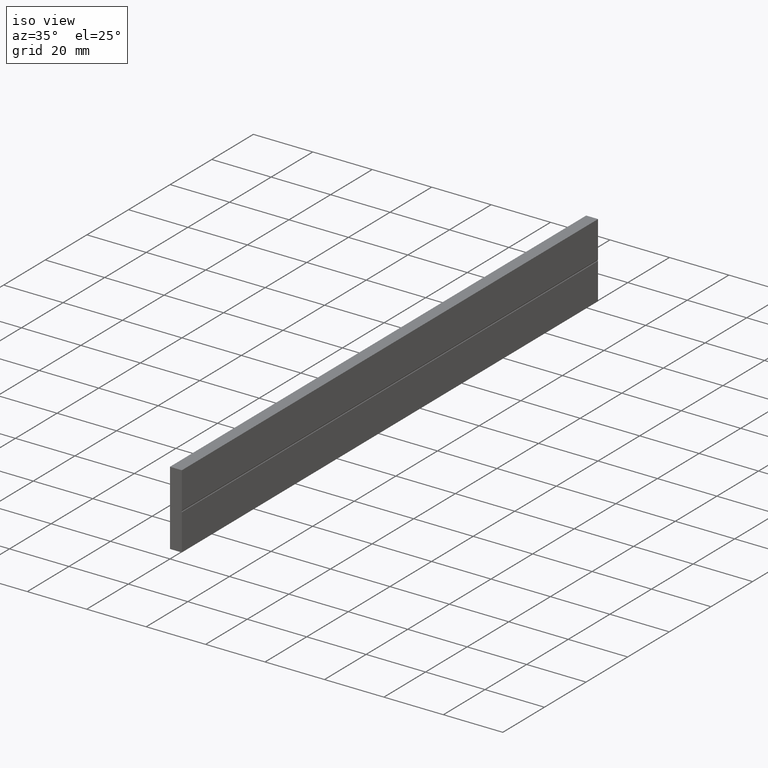
[diagram: clean part render]
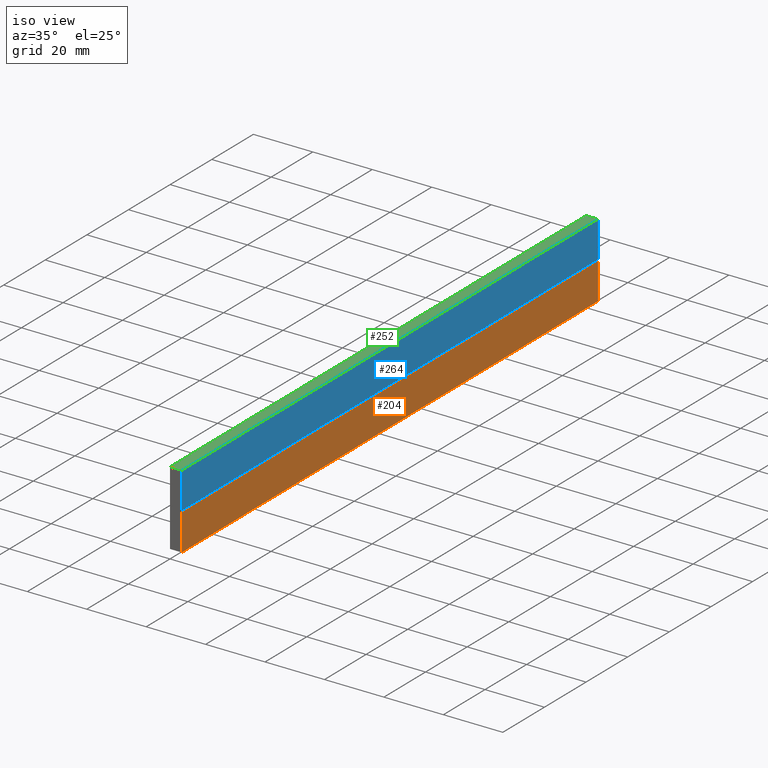
[diagram: same view with three faces highlighted in distinct colors, each labeled with its STEP entity id]
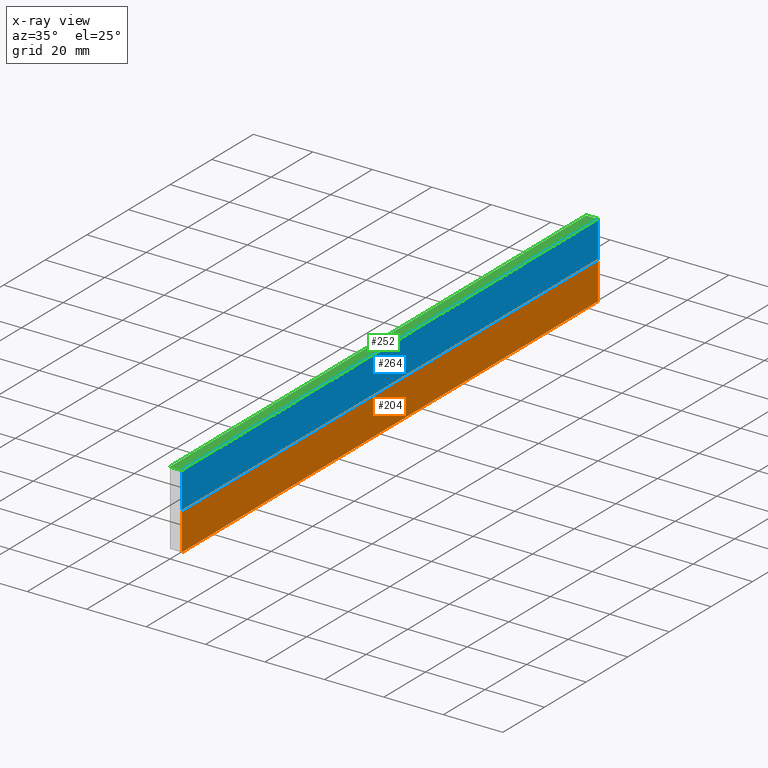
[diagram: x-ray of the same camera — body ghosted, the three highlighted faces saturated]
A machine part, iso view with three faces highlighted in distinct colors.
The next image is the same camera in x-ray (body ghosted, the three faces saturated) — at least one of them is partly hidden behind the body in this view.
Their STEP definitions:

[orange] entity #204 — the highlighted face is a freeform B-spline surface patch.
#72=CARTESIAN_POINT('',(4.0,0.0,0.0));
#73=VERTEX_POINT('',#72);
#79=CARTESIAN_POINT('',(4.0,0.0,12.249999999968679));
#80=VERTEX_POINT('',#79);
#81=CARTESIAN_POINT('',(4.0,0.0,0.0));
#82=CARTESIAN_POINT('',(4.0,0.0,12.249999999968679));
#83=QUASI_UNIFORM_CURVE('',1,(#81,#82),.UNSPECIFIED.,.F.,.U.);
#84=EDGE_CURVE('',#73,#80,#83,.T.);
#116=CARTESIAN_POINT('',(4.0,200.0,12.249999999968679));
#117=VERTEX_POINT('',#116);
#131=CARTESIAN_POINT('',(4.0,200.0,0.0));
#132=VERTEX_POINT('',#131);
#133=CARTESIAN_POINT('',(4.0,200.0,0.0));
#134=CARTESIAN_POINT('',(4.0,200.0,12.249999999968679));
#135=QUASI_UNIFORM_CURVE('',1,(#133,#134),.UNSPECIFIED.,.F.,.U.);
#136=EDGE_CURVE('',#132,#117,#135,.T.);
#175=CARTESIAN_POINT('',(4.0,200.0,12.249999999968679));
#176=CARTESIAN_POINT('',(4.0,0.0,12.249999999968679));
#177=QUASI_UNIFORM_CURVE('',1,(#175,#176),.UNSPECIFIED.,.F.,.U.);
#178=EDGE_CURVE('',#117,#80,#177,.T.);
#189=CARTESIAN_POINT('',(4.0,-9.989999612361171,12.861887476224240));
#190=CARTESIAN_POINT('',(4.0,-9.989999612361171,-0.611887804826163));
#191=CARTESIAN_POINT('',(4.0,209.990004976779200,12.861887476224240));
#192=CARTESIAN_POINT('',(4.0,209.990004976779200,-0.611887804826163));
#193=B_SPLINE_SURFACE_WITH_KNOTS('',1,1,((#189,#191),(#190,#192)),.UNSPECIFIED.,.F.,.F.,.U.,(2,2),(2,2),(0.0,13.473775281050401),(0.0,219.980004589140410),.UNSPECIFIED.);
#194=ORIENTED_EDGE('',*,*,#84,.F.);
#195=CARTESIAN_POINT('',(4.0,200.0,0.0));
#196=CARTESIAN_POINT('',(4.0,0.0,0.0));
#197=QUASI_UNIFORM_CURVE('',1,(#195,#196),.UNSPECIFIED.,.F.,.U.);
#198=EDGE_CURVE('',#132,#73,#197,.T.);
#199=ORIENTED_EDGE('',*,*,#198,.F.);
#200=ORIENTED_EDGE('',*,*,#136,.T.);
#201=ORIENTED_EDGE('',*,*,#178,.T.);
#202=EDGE_LOOP('',(#194,#199,#200,#201));
#203=FACE_OUTER_BOUND('',#202,.T.);
#204=ADVANCED_FACE('',(#203),#193,.T.);

[blue] entity #264 — the highlighted face is a freeform B-spline surface patch.
#49=CARTESIAN_POINT('',(4.0,0.0,12.749999999968599));
#50=VERTEX_POINT('',#49);
#51=CARTESIAN_POINT('',(4.0,0.0,25.0));
#52=VERTEX_POINT('',#51);
#53=CARTESIAN_POINT('',(4.0,0.0,12.749999999968599));
#54=CARTESIAN_POINT('',(4.0,0.0,25.0));
#55=QUASI_UNIFORM_CURVE('',1,(#53,#54),.UNSPECIFIED.,.F.,.U.);
#56=EDGE_CURVE('',#50,#52,#55,.T.);
#107=CARTESIAN_POINT('',(4.0,200.0,12.749999999968599));
#108=VERTEX_POINT('',#107);
#109=CARTESIAN_POINT('',(4.0,200.0,25.0));
#110=VERTEX_POINT('',#109);
#111=CARTESIAN_POINT('',(4.0,200.0,12.749999999968599));
#112=CARTESIAN_POINT('',(4.0,200.0,25.0));
#113=QUASI_UNIFORM_CURVE('',1,(#111,#112),.UNSPECIFIED.,.F.,.U.);
#114=EDGE_CURVE('',#108,#110,#113,.T.);
#181=CARTESIAN_POINT('',(4.0,200.0,12.749999999968599));
#182=CARTESIAN_POINT('',(4.0,0.0,12.749999999968599));
#183=QUASI_UNIFORM_CURVE('',1,(#181,#182),.UNSPECIFIED.,.F.,.U.);
#184=EDGE_CURVE('',#108,#50,#183,.T.);
#243=CARTESIAN_POINT('',(4.0,200.0,25.0));
#244=CARTESIAN_POINT('',(4.0,0.0,25.0));
#245=QUASI_UNIFORM_CURVE('',1,(#243,#244),.UNSPECIFIED.,.F.,.U.);
#246=EDGE_CURVE('',#110,#52,#245,.T.);
#253=CARTESIAN_POINT('',(4.0,-9.989999612361171,25.611887476258691));
#254=CARTESIAN_POINT('',(4.0,-9.989999612361171,12.138112195139311));
#255=CARTESIAN_POINT('',(4.0,209.990004976779200,25.611887476258691));
#256=CARTESIAN_POINT('',(4.0,209.990004976779200,12.138112195139311));
#257=B_SPLINE_SURFACE_WITH_KNOTS('',1,1,((#253,#255),(#254,#256)),.UNSPECIFIED.,.F.,.F.,.U.,(2,2),(2,2),(0.0,13.473775281119391),(0.0,219.980004589140410),.UNSPECIFIED.);
#258=ORIENTED_EDGE('',*,*,#56,.F.);
#259=ORIENTED_EDGE('',*,*,#184,.F.);
#260=ORIENTED_EDGE('',*,*,#114,.T.);
#261=ORIENTED_EDGE('',*,*,#246,.T.);
#262=EDGE_LOOP('',(#258,#259,#260,#261));
#263=FACE_OUTER_BOUND('',#262,.T.);
#264=ADVANCED_FACE('',(#263),#257,.T.);

[green] entity #252 — the highlighted face is a freeform B-spline surface patch.
#51=CARTESIAN_POINT('',(4.0,0.0,25.0));
#52=VERTEX_POINT('',#51);
#58=CARTESIAN_POINT('',(0.0,0.0,25.0));
#59=VERTEX_POINT('',#58);
#60=CARTESIAN_POINT('',(4.0,0.0,25.0));
#61=CARTESIAN_POINT('',(0.0,0.0,25.0));
#62=QUASI_UNIFORM_CURVE('',1,(#60,#61),.UNSPECIFIED.,.F.,.U.);
#63=EDGE_CURVE('',#52,#59,#62,.T.);
#109=CARTESIAN_POINT('',(4.0,200.0,25.0));
#110=VERTEX_POINT('',#109);
#145=CARTESIAN_POINT('',(0.0,200.0,25.0));
#146=VERTEX_POINT('',#145);
#152=CARTESIAN_POINT('',(4.0,200.0,25.0));
#153=CARTESIAN_POINT('',(0.0,200.0,25.0));
#154=QUASI_UNIFORM_CURVE('',1,(#152,#153),.UNSPECIFIED.,.F.,.U.);
#155=EDGE_CURVE('',#110,#146,#154,.T.);
#227=CARTESIAN_POINT('',(0.0,200.0,25.0));
#228=CARTESIAN_POINT('',(0.0,0.0,25.0));
#229=QUASI_UNIFORM_CURVE('',1,(#227,#228),.UNSPECIFIED.,.F.,.U.);
#230=EDGE_CURVE('',#146,#59,#229,.T.);
#237=CARTESIAN_POINT('',(-0.199799992247224,-9.989999612361171,25.0));
#238=CARTESIAN_POINT('',(4.199800099535585,-9.989999612361171,25.0));
#239=CARTESIAN_POINT('',(-0.199799992247224,209.990004976779200,25.0));
#240=CARTESIAN_POINT('',(4.199800099535585,209.990004976779200,25.0));
#241=B_SPLINE_SURFACE_WITH_KNOTS('',1,1,((#237,#239),(#238,#240)),.UNSPECIFIED.,.F.,.F.,.U.,(2,2),(2,2),(0.0,4.399600091782808),(0.0,219.980004589140410),.UNSPECIFIED.);
#242=ORIENTED_EDGE('',*,*,#63,.F.);
#243=CARTESIAN_POINT('',(4.0,200.0,25.0));
#244=CARTESIAN_POINT('',(4.0,0.0,25.0));
#245=QUASI_UNIFORM_CURVE('',1,(#243,#244),.UNSPECIFIED.,.F.,.U.);
#246=EDGE_CURVE('',#110,#52,#245,.T.);
#247=ORIENTED_EDGE('',*,*,#246,.F.);
#248=ORIENTED_EDGE('',*,*,#155,.T.);
#249=ORIENTED_EDGE('',*,*,#230,.T.);
#250=EDGE_LOOP('',(#242,#247,#248,#249));
#251=FACE_OUTER_BOUND('',#250,.T.);
#252=ADVANCED_FACE('',(#251),#241,.T.);